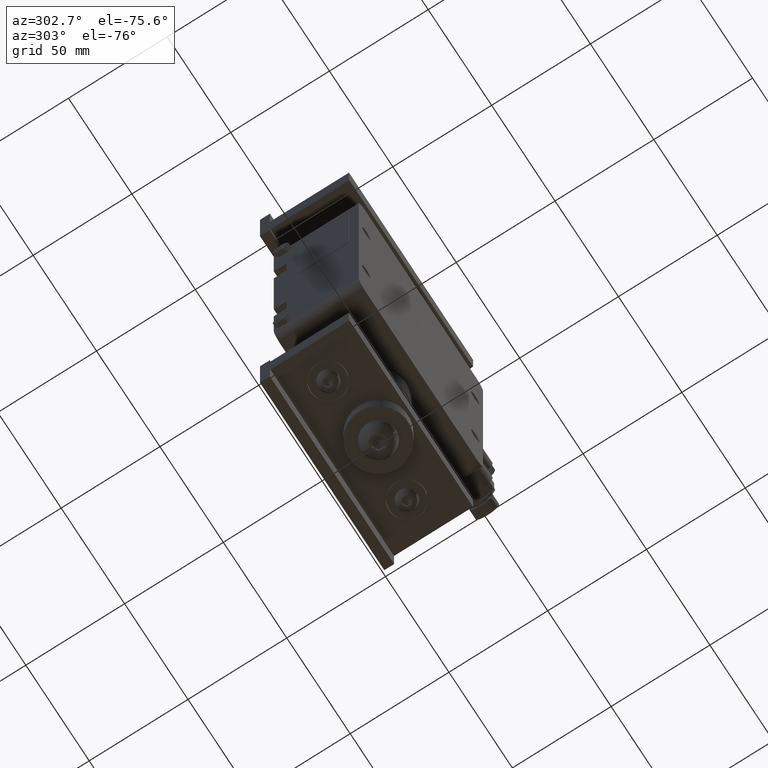
[diagram: clean part render]
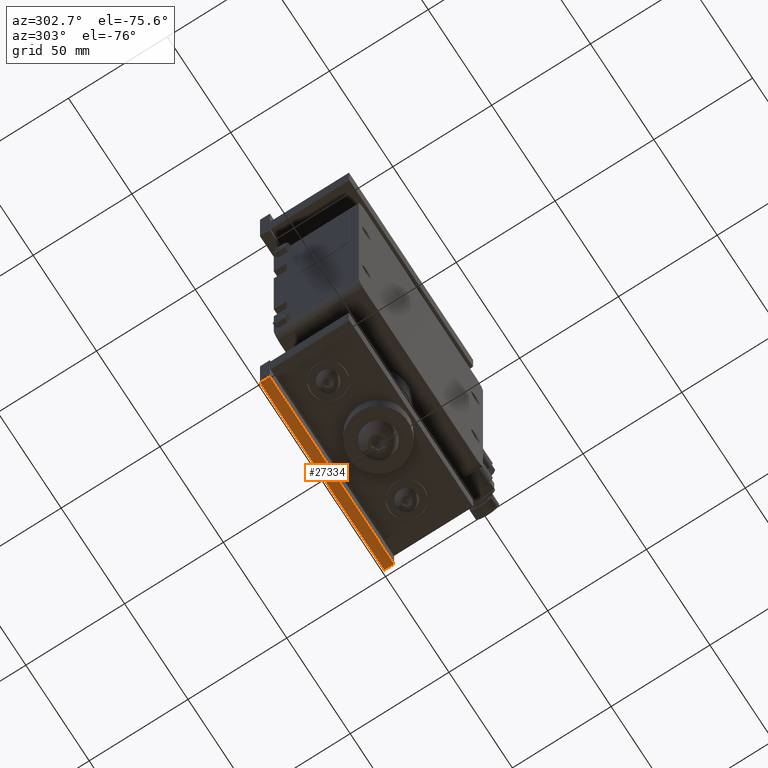
[diagram: same view with one face highlighted and labeled with its STEP entity id]
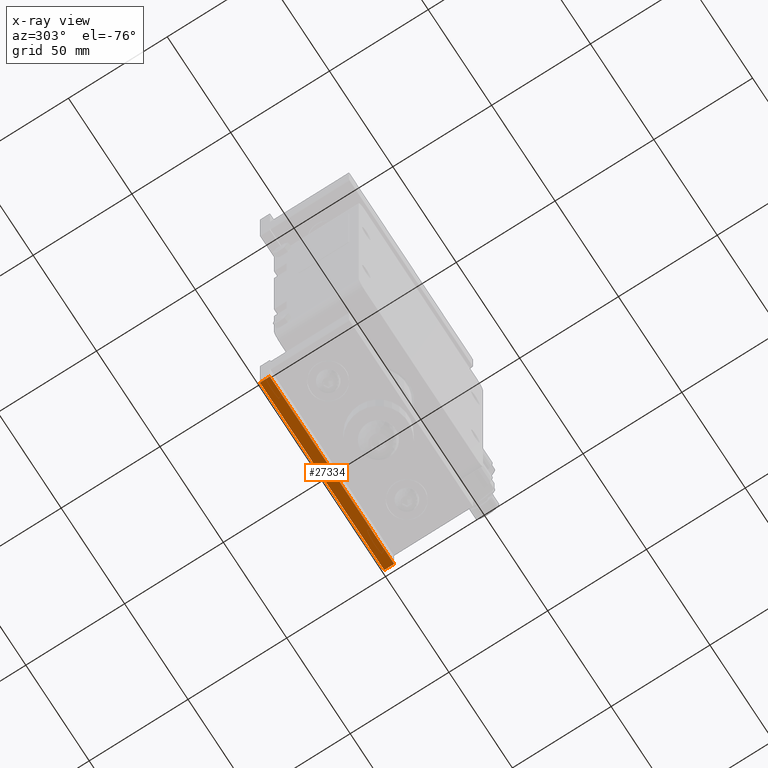
[diagram: x-ray of the same camera — body ghosted, the highlighted face saturated]
A machine part, auxiliary view. The second image highlights one B-rep face of the part: STEP entity #27334.
The next image is the same camera in x-ray: the body ghosted, the highlighted face saturated — about 0% of this face is hidden behind the body in this view.
In plain terms, the highlighted planar face has unit normal (0, -0, 1).
Its self-contained STEP definition (entity closure, byte-faithful):
#537 = EDGE_CURVE ( 'NONE', #3459, #12924, #53542, .T. ) ;
#1962 = VECTOR ( 'NONE', #53268, 1000.000000000000000 ) ;
#2178 = CARTESIAN_POINT ( 'NONE',  ( 49.00000000000000000, 50.00000000000000000, -68.50000000000000000 ) ) ;
#3459 = VERTEX_POINT ( 'NONE', #47736 ) ;
#4639 = VERTEX_POINT ( 'NONE', #52103 ) ;
#4822 = ORIENTED_EDGE ( 'NONE', *, *, #51245, .T. ) ;
#5709 = EDGE_CURVE ( 'NONE', #4639, #12924, #17788, .T. ) ;
#7135 = CARTESIAN_POINT ( 'NONE',  ( 49.00000000000000000, 50.00000000000000000, -68.50000000000000000 ) ) ;
#12924 = VERTEX_POINT ( 'NONE', #27482 ) ;
#15609 = CARTESIAN_POINT ( 'NONE',  ( 49.00000000000000000, 50.00000000000000000, -68.50000000000000000 ) ) ;
#16335 = DIRECTION ( 'NONE',  ( 3.660075143236614837E-16, -4.517041674683839957E-16, 1.000000000000000000 ) ) ;
#17788 = LINE ( 'NONE', #39466, #39395 ) ;
#19923 = VERTEX_POINT ( 'NONE', #15609 ) ;
#22079 = CARTESIAN_POINT ( 'NONE',  ( 49.00000000000000000, 50.00000000000000000, -68.50000000000000000 ) ) ;
#22894 = LINE ( 'NONE', #22079, #45791 ) ;
#23873 = DIRECTION ( 'NONE',  ( 1.316655118266404079E-15, -1.000000000000000000, -4.517041674683769946E-16 ) ) ;
#27334 = ADVANCED_FACE ( 'NONE', ( #32808 ), #53972, .F. ) ;
#27482 = CARTESIAN_POINT ( 'NONE',  ( -49.00000000000000000, 45.00000000000000000, -68.50000000000000000 ) ) ;
#28951 = DIRECTION ( 'NONE',  ( 0.000000000000000000, -1.000000000000000000, -4.517041674683839957E-16 ) ) ;
#32808 = FACE_OUTER_BOUND ( 'NONE', #37055, .T. ) ;
#33591 = EDGE_CURVE ( 'NONE', #19923, #4639, #22894, .T. ) ;
#34268 = DIRECTION ( 'NONE',  ( 1.316655118266404079E-15, -1.000000000000000000, -4.517041674683769946E-16 ) ) ;
#34630 = ORIENTED_EDGE ( 'NONE', *, *, #33591, .F. ) ;
#37055 = EDGE_LOOP ( 'NONE', ( #49875, #39557, #34630, #4822 ) ) ;
#39395 = VECTOR ( 'NONE', #34268, 1000.000000000000000 ) ;
#39466 = CARTESIAN_POINT ( 'NONE',  ( -49.00000000000000000, 50.00000000000000000, -68.50000000000000000 ) ) ;
#39557 = ORIENTED_EDGE ( 'NONE', *, *, #5709, .F. ) ;
#45791 = VECTOR ( 'NONE', #51753, 1000.000000000000000 ) ;
#47736 = CARTESIAN_POINT ( 'NONE',  ( 49.00000000000000000, 45.00000000000000000, -68.50000000000000000 ) ) ;
#48622 = CARTESIAN_POINT ( 'NONE',  ( 49.00000000000000000, 45.00000000000000000, -68.50000000000000000 ) ) ;
#48883 = LINE ( 'NONE', #7135, #52418 ) ;
#49875 = ORIENTED_EDGE ( 'NONE', *, *, #537, .T. ) ;
#51245 = EDGE_CURVE ( 'NONE', #19923, #3459, #48883, .T. ) ;
#51753 = DIRECTION ( 'NONE',  ( -1.000000000000000000, -1.316655118266390077E-15, 3.660075143236609907E-16 ) ) ;
#52103 = CARTESIAN_POINT ( 'NONE',  ( -49.00000000000000000, 50.00000000000000000, -68.50000000000000000 ) ) ;
#52418 = VECTOR ( 'NONE', #23873, 1000.000000000000000 ) ;
#52435 = AXIS2_PLACEMENT_3D ( 'NONE', #2178, #16335, #28951 ) ;
#53268 = DIRECTION ( 'NONE',  ( -1.000000000000000000, -1.316655118266390077E-15, 3.660075143236609907E-16 ) ) ;
#53542 = LINE ( 'NONE', #48622, #1962 ) ;
#53972 = PLANE ( 'NONE',  #52435 ) ;